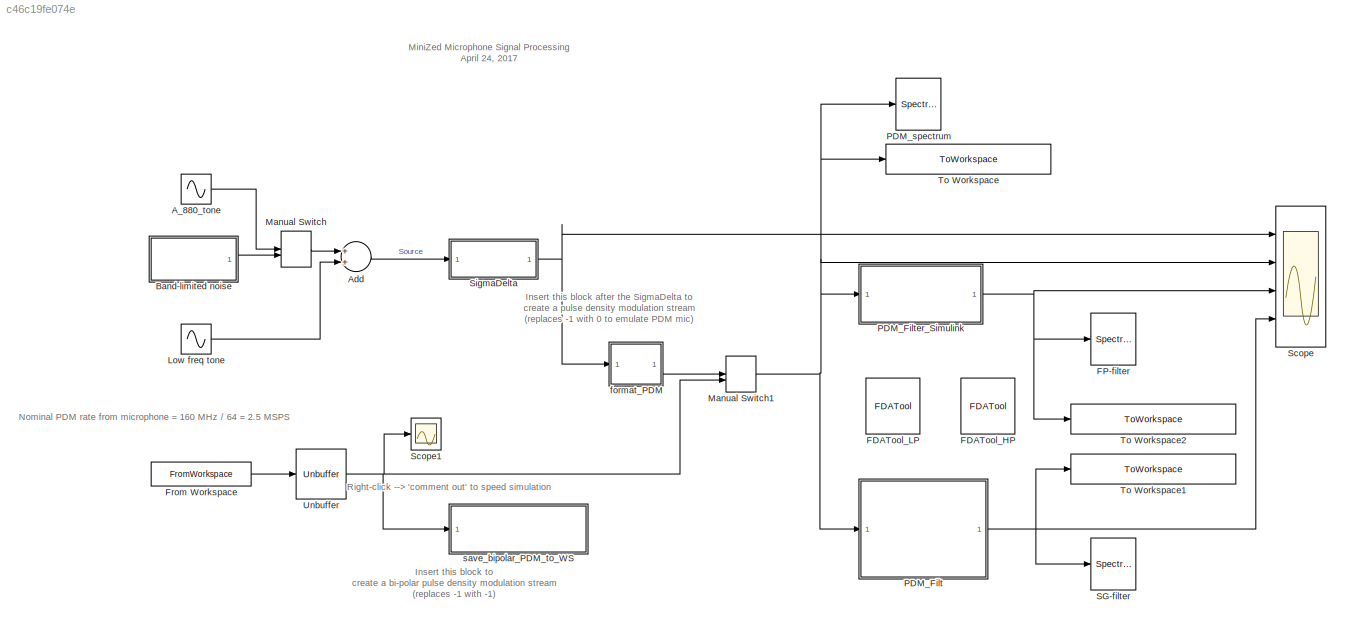
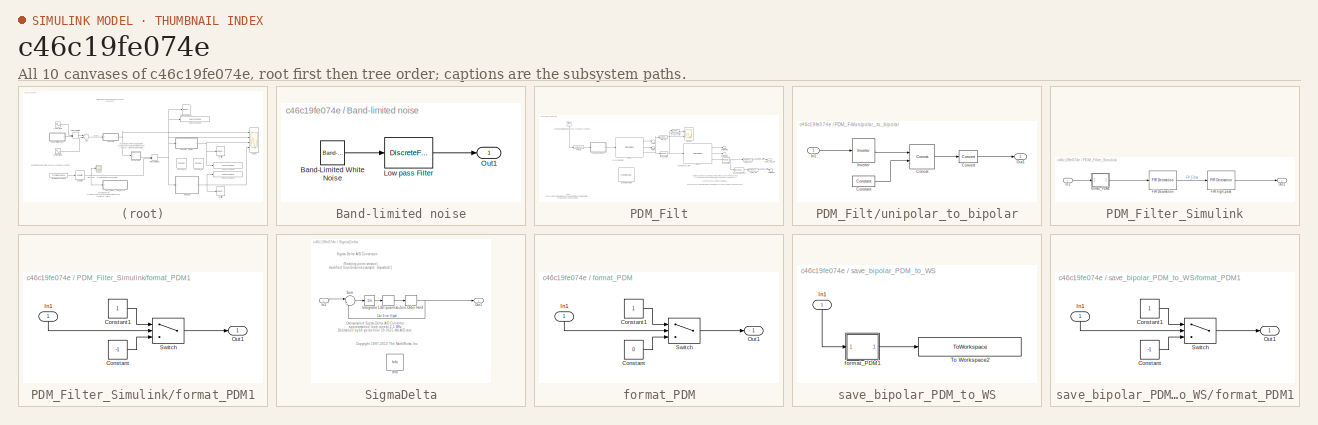
[diagram: thumbnail index - all 10 canvases of the model, root first then tree order]
MODEL slx_c46c19fe074e
KIND model
CONFIG AbsTol = 1e-6
CONFIG EnableMultiTasking = off
CONFIG FixedStep = auto
CONFIG MaxStep = 1/512000
CONFIG MinStep = auto
CONFIG PreLoadFcn = input_rate = 2.5e6;\ninput_period = 1/input_rate;\ndecimation_factor = 64;\n\n\nila_PDM_data = read_vectored_ILA_PDM_capture('.\ILA_capture\iladata_A440_vectors_1024.csv');\n% ila_PDM_data = read_vectored_ILA_PDM_capture('.\ILA_capture\iladata_speech_vectors_1024.csv');\n\nila_data_struct.time = [];\nila_data_struct.signals.values = ila_PDM_data;
CONFIG RelTol = 1e-3
CONFIG SampleTimeConstraint = Unconstrained
CONFIG Solver = ode5
CONFIG SolverName = ode5
CONFIG StartTime = 0.0
CONFIG StopFcn = p = audioplayer(squeeze(simout_demodulated_SG.Data), input_rate/decimation_factor);\nplay(p, [1 (get(p, 'SampleRate') * 1)]);\n\np = audioplayer(squeeze(simout_demodulated_FP.Data), input_rate/decimation_factor);\nplay(p, [1 (get(p, 'SampleRate') * 1)]);
CONFIG StopTime = 2*pi*200000/2.4e6
BLOCK [Sin] A_880_tone
  Amplitude = 0.5
  Frequency = 2*pi*880
  Ports = [0, 1]
  SampleTime = input_period
BLOCK [Sum] Add
  InputSameDT = off
  OutDataTypeStr = Inherit: Inherit via internal rule
  Ports = [2, 1]
  SaturateOnIntegerOverflow = off
BLOCK [SubSystem] Band-limited noise
  Ports = [0, 1]
  RequestExecContextInheritance = off
  Variant = off
BLOCK [Reference] Band-limited noise/Band-Limited White Noise  REF=simulink/Sources/Band-Limited
White Noise
  Ports = [0, 1]
  SourceBlock = simulink/Sources/Band-Limited\nWhite Noise
  SourceType = Band-Limited White Noise.
BLOCK [DiscreteFir] Band-limited noise/Low pass Filter
  Coefficients = xlfda_numerator([bdroot '/FDATool_LP'])
  InputPortMap = u0
  OutputPortMap = o0
  Ports = [1, 1]
BLOCK [Outport] Band-limited noise/Out1
  IconDisplay = Port number
BLOCK [Reference] FDATool_HP  REF=xbsIndex_r4/FDATool
  Ports = []
  SourceBlock = xbsIndex_r4/FDATool
  SourceType = Xilinx FDATool Interface Block
  UserDataPersistent = on
BLOCK [Reference] FDATool_LP  REF=xbsIndex_r4/FDATool
  Ports = []
  SourceBlock = xbsIndex_r4/FDATool
  SourceType = Xilinx FDATool Interface Block
  UserDataPersistent = on
BLOCK [SpectrumAnalyzer] FP-filter
  NumInputPorts = 1
  Ports = [1]
  ScopeSpecificationString = spbscopes.SpectrumAnalyzerBlockCfg('CurrentConfiguration', extmgr.ConfigurationSet(extmgr.Configuration('Core','General UI',true),extmgr.Configuration('Core','Source UI',true),extmgr.Configuration('Sources','WiredSimulink',true),extmgr.Configuration('Sources','Simulink',false),extmgr.Configuration('Sources','File',false),extmgr.Configuration('Sources','Workspace',false),extmgr.Configuration('Sourc...<+1890ch>
BLOCK [FromWorkspace] From Workspace
  Interpolate = off
  OutDataTypeStr = double
  OutputAfterFinalValue = Cyclic repetition
  SampleTime = input_period*1024
  VariableName = ila_data_struct
  ZeroCross = on
BLOCK [Sin] Low freq tone
  Amplitude = 0.0
  Frequency = 2*pi*5
  Ports = [0, 1]
  SampleTime = input_period
BLOCK [ManualSwitch] Manual Switch
BLOCK [ManualSwitch] Manual Switch1
  CurrentSetting = 0
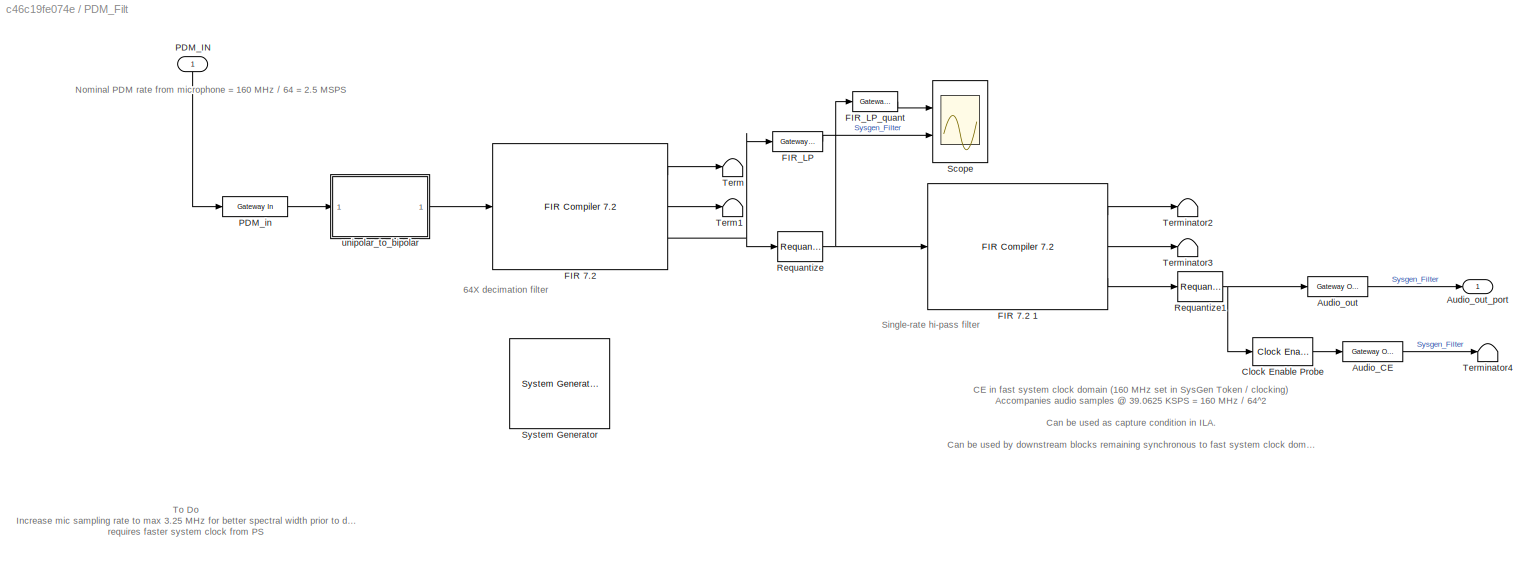
BLOCK [SubSystem] PDM_Filt
  Ports = [1, 1]
  RequestExecContextInheritance = off
  Variant = off
BLOCK [Reference] PDM_Filt/ System Generator  REF=xbsIndex_r4/ System Generator
  AttributesFormatString = System\nGenerator
  Ports = []
  SourceBlock = xbsIndex_r4/ System Generator
  SourceType = Xilinx System Generator Block
  Tag = genX
  UserDataPersistent = on
BLOCK [Reference] PDM_Filt/Audio_CE  REF=xbsIndex_r4/Gateway Out
  Ports = [1, 1]
  SourceBlock = xbsIndex_r4/Gateway Out
  SourceType = Xilinx Gateway Out Block
BLOCK [Reference] PDM_Filt/Audio_out  REF=xbsIndex_r4/Gateway Out
  Ports = [1, 1]
  SourceBlock = xbsIndex_r4/Gateway Out
  SourceType = Xilinx Gateway Out Block
BLOCK [Outport] PDM_Filt/Audio_out_port
  IconDisplay = Port number
BLOCK [Reference] PDM_Filt/Clock Enable Probe  REF=xbsIndex_r4/Clock Enable Probe
  Ports = [1, 1]
  SourceBlock = xbsIndex_r4/Clock Enable Probe
  SourceType = Xilinx Clock Enable Probe Block
BLOCK [Reference] PDM_Filt/FIR 7.2   REF=xbsIndex_r4/FIR Compiler 7.2 
  Ports = [1, 3]
  SourceBlock = xbsIndex_r4/FIR Compiler 7.2
  SourceType = Xilinx FIR Compiler 7.2 Block
BLOCK [Reference] PDM_Filt/FIR 7.2 1  REF=xbsIndex_r4/FIR Compiler 7.2 
  Ports = [1, 3]
  SourceBlock = xbsIndex_r4/FIR Compiler 7.2
  SourceType = Xilinx FIR Compiler 7.2 Block
BLOCK [Reference] PDM_Filt/FIR_LP  REF=xbsIndex_r4/Gateway Out
  Ports = [1, 1]
  SourceBlock = xbsIndex_r4/Gateway Out
  SourceType = Xilinx Gateway Out Block
BLOCK [Reference] PDM_Filt/FIR_LP_quant  REF=xbsIndex_r4/Gateway Out
  Ports = [1, 1]
  SourceBlock = xbsIndex_r4/Gateway Out
  SourceType = Xilinx Gateway Out Block
BLOCK [Inport] PDM_Filt/PDM_IN
  IconDisplay = Port number
BLOCK [Reference] PDM_Filt/PDM_in  REF=xbsIndex_r4/Gateway In
  Ports = [1, 1]
  SourceBlock = xbsIndex_r4/Gateway In
  SourceType = Xilinx Gateway In Block
BLOCK [Reference] PDM_Filt/Requantize  REF=xbsIndex_r4/Requantize
  Ports = [1, 1]
  SourceBlock = xbsIndex_r4/Requantize
  SourceType = Xilinx Requantize Block
BLOCK [Reference] PDM_Filt/Requantize1  REF=xbsIndex_r4/Requantize
  Ports = [1, 1]
  SourceBlock = xbsIndex_r4/Requantize
  SourceType = Xilinx Requantize Block
BLOCK [Scope] PDM_Filt/Scope
  NumInputPorts = 2
  Ports = [2]
  ScopeSpecificationString = Simulink.scopes.TimeScopeBlockCfg('CurrentConfiguration', extmgr.ConfigurationSet(extmgr.Configuration('Core','General UI',true),extmgr.Configuration('Core','Source UI',true),extmgr.Configuration('Sources','WiredSimulink',true,'DataLoggingVariableName','ScopeData1'),extmgr.Configuration('Visuals','Time Domain',true,'SerializedDisplays',{struct('MinYLimReal','-1.12341','MaxYLimReal','2.18103','YLab...<+2115ch>
BLOCK [Terminator] PDM_Filt/Term
BLOCK [Terminator] PDM_Filt/Term1
BLOCK [Terminator] PDM_Filt/Terminator2
BLOCK [Terminator] PDM_Filt/Terminator3
BLOCK [Terminator] PDM_Filt/Terminator4
BLOCK [SubSystem] PDM_Filt/unipolar_to_bipolar
  Ports = [1, 1]
  RequestExecContextInheritance = off
  Variant = off
BLOCK [Reference] PDM_Filt/unipolar_to_bipolar/Concat  REF=xbsIndex_r4/Concat
  Ports = [2, 1]
  SourceBlock = xbsIndex_r4/Concat
  SourceType = Xilinx Bus Concatenator Block
BLOCK [Reference] PDM_Filt/unipolar_to_bipolar/Constant  REF=xbsIndex_r4/Constant
  Ports = [0, 1]
  SourceBlock = xbsIndex_r4/Constant
  SourceType = Xilinx Constant Block Block
BLOCK [Reference] PDM_Filt/unipolar_to_bipolar/Convert  REF=xbsIndex_r4/Convert
  Ports = [1, 1]
  SourceBlock = xbsIndex_r4/Convert
  SourceType = Xilinx Type Converter Block
BLOCK [Inport] PDM_Filt/unipolar_to_bipolar/In1
  IconDisplay = Port number
BLOCK [Reference] PDM_Filt/unipolar_to_bipolar/Inverter  REF=xbsIndex_r4/Inverter
  Ports = [1, 1]
  SourceBlock = xbsIndex_r4/Inverter
  SourceType = Xilinx Inverter Block
BLOCK [Outport] PDM_Filt/unipolar_to_bipolar/Out1
  IconDisplay = Port number
BLOCK [SubSystem] PDM_Filter_Simulink
  Ports = [1, 1]
  RequestExecContextInheritance = off
  Variant = off
BLOCK [Reference] PDM_Filter_Simulink/FIR Decimation  REF=dspmlti4/FIR
Decimation
  Ports = [1, 1]
  SourceBlock = dspmlti4/FIR\nDecimation
  SourceType = FIR Decimation
  UserDataPersistent = on
BLOCK [Reference] PDM_Filter_Simulink/FIR high-pass   REF=dspmlti4/FIR
Decimation
  Ports = [1, 1]
  SourceBlock = dspmlti4/FIR\nDecimation
  SourceType = FIR Decimation
  UserDataPersistent = on
BLOCK [Inport] PDM_Filter_Simulink/In1
  IconDisplay = Port number
BLOCK [Outport] PDM_Filter_Simulink/Out1
  IconDisplay = Port number
BLOCK [SubSystem] PDM_Filter_Simulink/format_PDM1
  Ports = [1, 1]
  RequestExecContextInheritance = off
  Variant = off
BLOCK [Constant] PDM_Filter_Simulink/format_PDM1/Constant
  Value = -1
BLOCK [Constant] PDM_Filter_Simulink/format_PDM1/Constant1
BLOCK [Inport] PDM_Filter_Simulink/format_PDM1/In1
  IconDisplay = Port number
BLOCK [Outport] PDM_Filter_Simulink/format_PDM1/Out1
  IconDisplay = Port number
BLOCK [Switch] PDM_Filter_Simulink/format_PDM1/Switch
  Criteria = u2 > Threshold
  InputSameDT = off
  SaturateOnIntegerOverflow = off
BLOCK [SpectrumAnalyzer] PDM_spectrum
  Commented = on
  NumInputPorts = 1
  Ports = [1]
  ScopeSpecificationString = spbscopes.SpectrumAnalyzerBlockCfg('CurrentConfiguration', extmgr.ConfigurationSet(extmgr.Configuration('Core','General UI',true),extmgr.Configuration('Core','Source UI',true),extmgr.Configuration('Sources','WiredSimulink',true),extmgr.Configuration('Sources','Simulink',false),extmgr.Configuration('Sources','File',false),extmgr.Configuration('Sources','Workspace',false),extmgr.Configuration('Sourc...<+2104ch>
BLOCK [SpectrumAnalyzer] SG-filter
  NumInputPorts = 1
  Ports = [1]
  ScopeSpecificationString = spbscopes.SpectrumAnalyzerBlockCfg('CurrentConfiguration', extmgr.ConfigurationSet(extmgr.Configuration('Core','General UI',true),extmgr.Configuration('Core','Source UI',true),extmgr.Configuration('Sources','WiredSimulink',true),extmgr.Configuration('Sources','Streaming',false),extmgr.Configuration('Sources','Simulink',false),extmgr.Configuration('Sources','SPTool',false),extmgr.Configuration('Sou...<+1886ch>
BLOCK [Scope] Scope
  NumInputPorts = 4
  Ports = [4]
  ScopeSpecificationString = Simulink.scopes.TimeScopeBlockCfg('CurrentConfiguration', extmgr.ConfigurationSet(extmgr.Configuration('Core','General UI',true),extmgr.Configuration('Core','Source UI',true),extmgr.Configuration('Sources','WiredSimulink',true,'DataLoggingVariableName','ScopeData1','DataLoggingSaveFormat','StructureWithTime','DataLoggingMaxPoints','90000','DataLoggingDecimation','1','DataLoggingDecimateData',true)...<+3836ch>
BLOCK [Scope] Scope1
  Commented = on
  NumInputPorts = 1
  Ports = [1]
  ScopeSpecificationString = Simulink.scopes.TimeScopeBlockCfg('CurrentConfiguration', extmgr.ConfigurationSet(extmgr.Configuration('Core','General UI',true),extmgr.Configuration('Core','Source UI',true),extmgr.Configuration('Sources','WiredSimulink',true,'DataLoggingVariableName','ScopeData1'),extmgr.Configuration('Visuals','Time Domain',true,'SerializedDisplays',{struct('MinYLimReal','-0.125','MaxYLimReal','1.125','YLabelRe...<+1454ch>
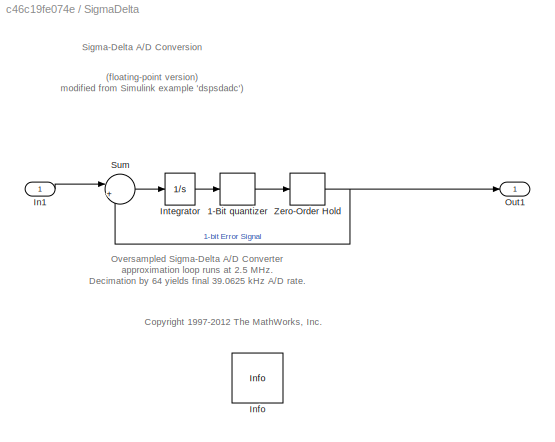
BLOCK [SubSystem] SigmaDelta
  Ports = [1, 1]
  RequestExecContextInheritance = off
  Variant = off
BLOCK [Signum] SigmaDelta/1-Bit quantizer
BLOCK [Inport] SigmaDelta/In1
  IconDisplay = Port number
BLOCK [Reference] SigmaDelta/Info  REF=dspmisc/Info
  Ports = []
  SourceBlock = dspmisc/Info
  SourceType = Info
BLOCK [Integrator] SigmaDelta/Integrator
  Ports = [1, 1]
BLOCK [Outport] SigmaDelta/Out1
  IconDisplay = Port number
BLOCK [Sum] SigmaDelta/Sum
  IconShape = round
  Inputs = |+-
  Ports = [2, 1]
BLOCK [ZeroOrderHold] SigmaDelta/Zero-Order Hold
  SampleTime = input_period
BLOCK [ToWorkspace] To Workspace
  Commented = on
  FixptAsFi = on
  MaxDataPoints = inf
  Ports = [1]
  SampleTime = -1
  Save2DSignal = 3-D array (concatenate along third dimension)
  SaveFormat = Timeseries
  VariableName = simout_Simulink_source_PDM
BLOCK [ToWorkspace] To Workspace1
  FixptAsFi = on
  MaxDataPoints = inf
  Ports = [1]
  SampleTime = -1
  Save2DSignal = 3-D array (concatenate along third dimension)
  SaveFormat = Timeseries
  VariableName = simout_demodulated_SG
BLOCK [ToWorkspace] To Workspace2
  FixptAsFi = on
  MaxDataPoints = inf
  Ports = [1]
  SampleTime = -1
  Save2DSignal = 3-D array (concatenate along third dimension)
  SaveFormat = Timeseries
  VariableName = simout_demodulated_FP
BLOCK [Unbuffer] Unbuffer
  Ports = [1, 1]
  SampleBasedProcessing = Same as frame based
BLOCK [SubSystem] format_PDM
  Ports = [1, 1]
  RequestExecContextInheritance = off
  Variant = off
BLOCK [Constant] format_PDM/Constant
  Value = 0
BLOCK [Constant] format_PDM/Constant1
BLOCK [Inport] format_PDM/In1
  IconDisplay = Port number
BLOCK [Outport] format_PDM/Out1
  IconDisplay = Port number
BLOCK [Switch] format_PDM/Switch
  Criteria = u2 > Threshold
  InputSameDT = off
  SaturateOnIntegerOverflow = off
BLOCK [SubSystem] save_bipolar_PDM_to_WS
  Commented = on
  Ports = [1]
  RequestExecContextInheritance = off
  Variant = off
BLOCK [Inport] save_bipolar_PDM_to_WS/In1
  IconDisplay = Port number
BLOCK [ToWorkspace] save_bipolar_PDM_to_WS/To Workspace2
  FixptAsFi = on
  MaxDataPoints = inf
  Ports = [1]
  SampleTime = -1
  Save2DSignal = 3-D array (concatenate along third dimension)
  SaveFormat = Timeseries
  VariableName = simout_captured_data_PDM_bipolar
BLOCK [SubSystem] save_bipolar_PDM_to_WS/format_PDM1
  Ports = [1, 1]
  RequestExecContextInheritance = off
  Variant = off
BLOCK [Constant] save_bipolar_PDM_to_WS/format_PDM1/Constant
  Value = -1
BLOCK [Constant] save_bipolar_PDM_to_WS/format_PDM1/Constant1
BLOCK [Inport] save_bipolar_PDM_to_WS/format_PDM1/In1
  IconDisplay = Port number
BLOCK [Outport] save_bipolar_PDM_to_WS/format_PDM1/Out1
  IconDisplay = Port number
BLOCK [Switch] save_bipolar_PDM_to_WS/format_PDM1/Switch
  Criteria = u2 > Threshold
  InputSameDT = off
  SaturateOnIntegerOverflow = off
ANNOTATION (root): MiniZed Microphone Signal Processing April 24, 2017
ANNOTATION (root): Insert this block after the SigmaDelta to create a pulse density modulation stream (replaces -1 with 0 to emulate PDM mic)
ANNOTATION (root): Insert this block to create a bi-polar pulse density modulation stream (replaces -1 with -1)
ANNOTATION (root): Nominal PDM rate from microphone = 160 MHz / 64 = 2.5 MSPS
ANNOTATION (root): Right-click --> 'comment out' to speed simulation
ANNOTATION PDM_Filt: 64X decimation filter
ANNOTATION PDM_Filt: Single-rate hi-pass filter
ANNOTATION PDM_Filt: To Do Increase mic sampling rate to max 3.25 MHz for better spectral width prior to decimation requires faster system clock from PS
ANNOTATION PDM_Filt: CE in fast system clock domain (160 MHz set in SysGen Token / clocking) Accompanies audio samples @ 39.0625 KSPS = 160 MHz / 64^2 Can be used as capture condition in ILA. Can be used by downstream blocks remaining synchronous to fast system clock domain to take advantage of computation cycles. Alternatively, user could cross to the audio sampling clock domain (160 MHz / 64^2 = 39.0625 KSPS) to red...<+9ch>
ANNOTATION PDM_Filt: Nominal PDM rate from microphone = 160 MHz / 64 = 2.5 MSPS
ANNOTATION SigmaDelta: (floating-point version) modified from Simulink example 'dspsdadc')
ANNOTATION SigmaDelta: <copyright redacted>
ANNOTATION SigmaDelta: Oversampled Sigma-Delta A/D Converter approximation loop runs at 2.5 MHz. Decimation by 64 yields final 39.0625 kHz A/D rate.
ANNOTATION SigmaDelta: Sigma-Delta A/D Conversion
LINE A_880_tone:1 -> Manual Switch:1
LINE Add:1 -> SigmaDelta:1
LINE Band-limited noise/Band-Limited White Noise:1 -> Band-limited noise/Low pass Filter:1
LINE Band-limited noise/Low pass Filter:1 -> Band-limited noise/Out1:1
LINE Band-limited noise:1 -> Manual Switch:2
LINE From Workspace:1 -> Unbuffer:1
LINE Low freq tone:1 -> Add:2
NET Manual Switch1:1 -> PDM_Filt:1, PDM_Filter_Simulink:1, PDM_spectrum:1, Scope:2, To Workspace:1
LINE Manual Switch:1 -> Add:1
LINE PDM_Filt/Audio_CE:1 -> PDM_Filt/Terminator4:1
LINE PDM_Filt/Audio_out:1 -> PDM_Filt/Audio_out_port:1
LINE PDM_Filt/Clock Enable Probe:1 -> PDM_Filt/Audio_CE:1
LINE PDM_Filt/FIR 7.2 1:1 -> PDM_Filt/Terminator2:1
LINE PDM_Filt/FIR 7.2 1:2 -> PDM_Filt/Terminator3:1
LINE PDM_Filt/FIR 7.2 1:3 -> PDM_Filt/Requantize1:1
LINE PDM_Filt/FIR 7.2 :1 -> PDM_Filt/Term:1
LINE PDM_Filt/FIR 7.2 :2 -> PDM_Filt/Term1:1
NET PDM_Filt/FIR 7.2 :3 -> PDM_Filt/FIR_LP:1, PDM_Filt/Requantize:1
LINE PDM_Filt/FIR_LP:1 -> PDM_Filt/Scope:2
LINE PDM_Filt/FIR_LP_quant:1 -> PDM_Filt/Scope:1
LINE PDM_Filt/PDM_IN:1 -> PDM_Filt/PDM_in:1
LINE PDM_Filt/PDM_in:1 -> PDM_Filt/unipolar_to_bipolar:1
NET PDM_Filt/Requantize1:1 -> PDM_Filt/Audio_out:1, PDM_Filt/Clock Enable Probe:1
NET PDM_Filt/Requantize:1 -> PDM_Filt/FIR 7.2 1:1, PDM_Filt/FIR_LP_quant:1
LINE PDM_Filt/unipolar_to_bipolar/Concat:1 -> PDM_Filt/unipolar_to_bipolar/Convert:1
LINE PDM_Filt/unipolar_to_bipolar/Constant:1 -> PDM_Filt/unipolar_to_bipolar/Concat:2
LINE PDM_Filt/unipolar_to_bipolar/Convert:1 -> PDM_Filt/unipolar_to_bipolar/Out1:1
LINE PDM_Filt/unipolar_to_bipolar/In1:1 -> PDM_Filt/unipolar_to_bipolar/Inverter:1
LINE PDM_Filt/unipolar_to_bipolar/Inverter:1 -> PDM_Filt/unipolar_to_bipolar/Concat:1
LINE PDM_Filt/unipolar_to_bipolar:1 -> PDM_Filt/FIR 7.2 :1
NET PDM_Filt:1 -> SG-filter:1, Scope:4, To Workspace1:1
LINE PDM_Filter_Simulink/FIR Decimation:1 -> PDM_Filter_Simulink/FIR high-pass :1
LINE PDM_Filter_Simulink/FIR high-pass :1 -> PDM_Filter_Simulink/Out1:1
LINE PDM_Filter_Simulink/In1:1 -> PDM_Filter_Simulink/format_PDM1:1
LINE PDM_Filter_Simulink/format_PDM1/Constant1:1 -> PDM_Filter_Simulink/format_PDM1/Switch:1
LINE PDM_Filter_Simulink/format_PDM1/Constant:1 -> PDM_Filter_Simulink/format_PDM1/Switch:3
LINE PDM_Filter_Simulink/format_PDM1/In1:1 -> PDM_Filter_Simulink/format_PDM1/Switch:2
LINE PDM_Filter_Simulink/format_PDM1/Switch:1 -> PDM_Filter_Simulink/format_PDM1/Out1:1
LINE PDM_Filter_Simulink/format_PDM1:1 -> PDM_Filter_Simulink/FIR Decimation:1
NET PDM_Filter_Simulink:1 -> FP-filter:1, Scope:3, To Workspace2:1
LINE SigmaDelta/1-Bit quantizer:1 -> SigmaDelta/Zero-Order Hold:1
LINE SigmaDelta/In1:1 -> SigmaDelta/Sum:1
LINE SigmaDelta/Integrator:1 -> SigmaDelta/1-Bit quantizer:1
LINE SigmaDelta/Sum:1 -> SigmaDelta/Integrator:1
NET SigmaDelta/Zero-Order Hold:1 -> SigmaDelta/Out1:1, SigmaDelta/Sum:2
NET SigmaDelta:1 -> Scope:1, format_PDM:1
NET Unbuffer:1 -> Manual Switch1:2, Scope1:1, save_bipolar_PDM_to_WS:1
LINE format_PDM/Constant1:1 -> format_PDM/Switch:1
LINE format_PDM/Constant:1 -> format_PDM/Switch:3
LINE format_PDM/In1:1 -> format_PDM/Switch:2
LINE format_PDM/Switch:1 -> format_PDM/Out1:1
LINE format_PDM:1 -> Manual Switch1:1
LINE save_bipolar_PDM_to_WS/In1:1 -> save_bipolar_PDM_to_WS/format_PDM1:1
LINE save_bipolar_PDM_to_WS/format_PDM1/Constant1:1 -> save_bipolar_PDM_to_WS/format_PDM1/Switch:1
LINE save_bipolar_PDM_to_WS/format_PDM1/Constant:1 -> save_bipolar_PDM_to_WS/format_PDM1/Switch:3
LINE save_bipolar_PDM_to_WS/format_PDM1/In1:1 -> save_bipolar_PDM_to_WS/format_PDM1/Switch:2
LINE save_bipolar_PDM_to_WS/format_PDM1/Switch:1 -> save_bipolar_PDM_to_WS/format_PDM1/Out1:1
LINE save_bipolar_PDM_to_WS/format_PDM1:1 -> save_bipolar_PDM_to_WS/To Workspace2:1
note: NET lines group one-source signal fan-out (src -> all destinations, sorted); 1:1 wires keep LINE
